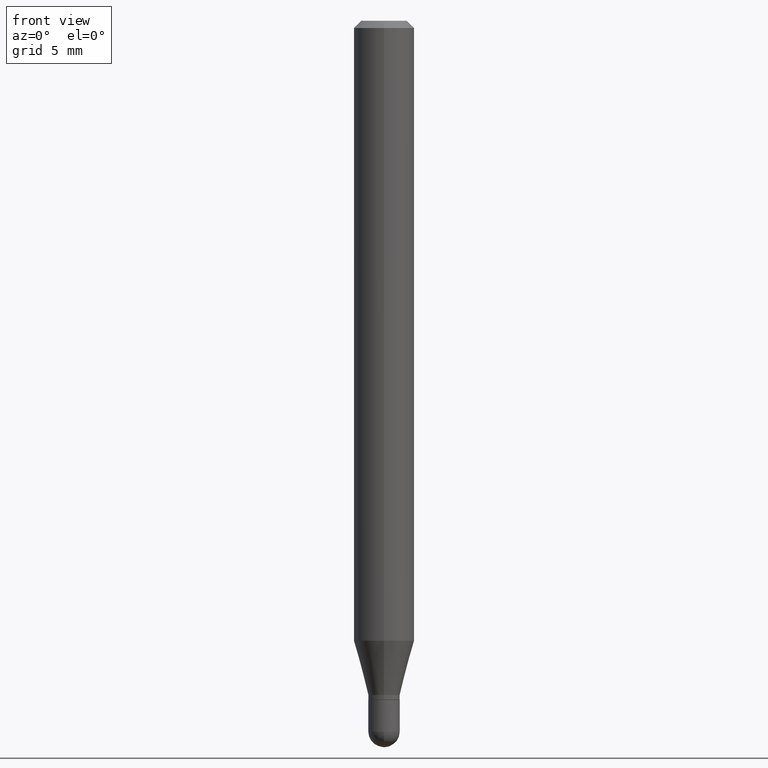
[diagram: clean part render]
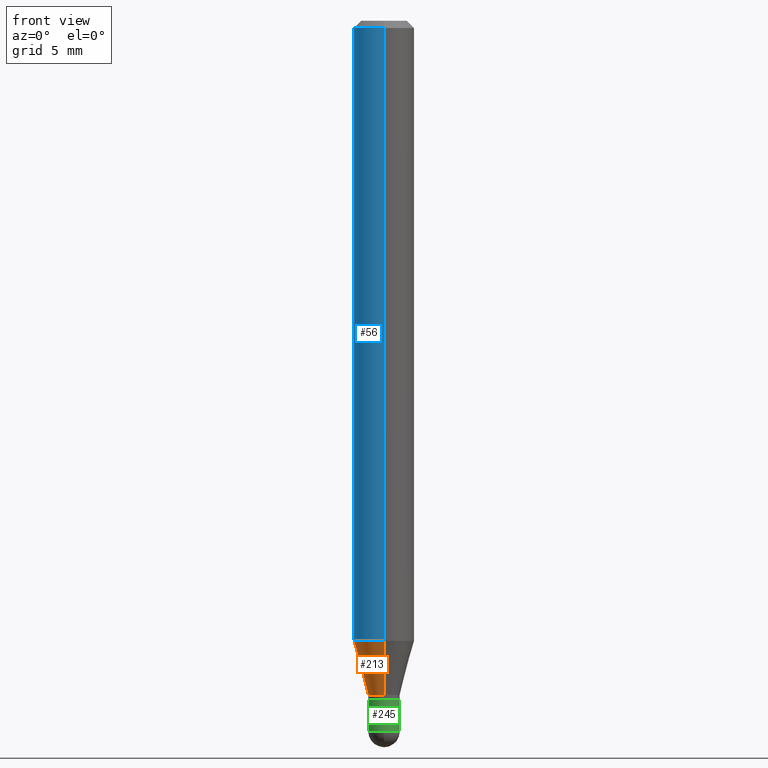
[diagram: same view with three faces highlighted in distinct colors, each labeled with its STEP entity id]
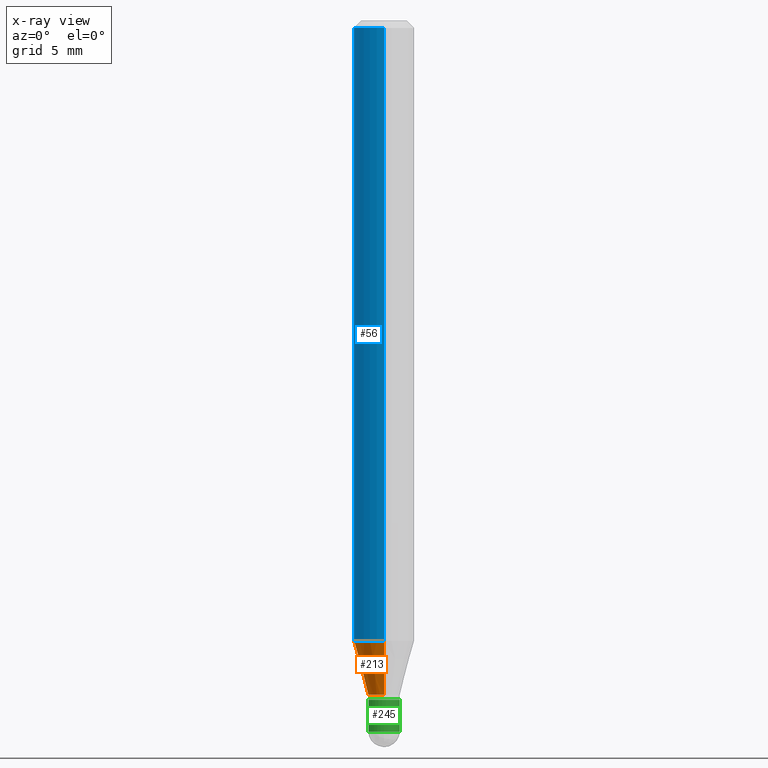
[diagram: x-ray of the same camera — body ghosted, the three highlighted faces saturated]
A machine part, front view with three faces highlighted in distinct colors.
The next image is the same camera in x-ray (body ghosted, the three faces saturated) — at least one of them is partly hidden behind the body in this view.
Their STEP definitions:

[orange] entity #213 — the highlighted conical surface has half-angle 15 deg.
#20 = EDGE_LOOP ( 'NONE', ( #484, #252, #335, #136 ) ) ;
#43 = AXIS2_PLACEMENT_3D ( 'NONE', #71, #234, #195 ) ;
#45 = VERTEX_POINT ( 'NONE', #146 ) ;
#71 = CARTESIAN_POINT ( 'NONE',  ( 3.404031189235755546E-29, -4.860229936174407704E-15, -1.392000000000000348 ) ) ;
#78 = EDGE_CURVE ( 'NONE', #140, #92, #470, .T. ) ;
#80 = DIRECTION ( 'NONE',  ( -6.982962677686265133E-15, -1.000000000000000000, 0.000000000000000000 ) ) ;
#82 = EDGE_CURVE ( 'NONE', #45, #140, #288, .T. ) ;
#92 = VERTEX_POINT ( 'NONE', #107 ) ;
#107 = CARTESIAN_POINT ( 'NONE',  ( -4.364351673553605094E-16, -0.06250000000000451028, -1.280038475772934836 ) ) ;
#124 = FACE_OUTER_BOUND ( 'NONE', #20, .T. ) ;
#125 = CARTESIAN_POINT ( 'NONE',  ( 4.440892098500935790E-16, 0.06249999999999548972, -1.280038475772935502 ) ) ;
#136 = ORIENTED_EDGE ( 'NONE', *, *, #388, .F. ) ;
#140 = VERTEX_POINT ( 'NONE', #324 ) ;
#146 = CARTESIAN_POINT ( 'NONE',  ( 3.375077994860809709E-16, 0.03249999999999533817, -1.392000000000000348 ) ) ;
#157 = EDGE_CURVE ( 'NONE', #45, #293, #443, .T. ) ;
#160 = DIRECTION ( 'NONE',  ( 1.839019923739600315E-15, 0.2588190451025249583, 0.9659258262890670910 ) ) ;
#178 = DIRECTION ( 'NONE',  ( -2.445424704910742757E-29, 3.491544494378166105E-15, 1.000000000000000000 ) ) ;
#195 = DIRECTION ( 'NONE',  ( -6.982962677686265133E-15, -1.000000000000000000, 0.000000000000000000 ) ) ;
#199 = CONICAL_SURFACE ( 'NONE', #266, 0.03250000000000020234, 0.2617993877991502960 ) ;
#213 = ADVANCED_FACE ( 'NONE', ( #124 ), #199, .T. ) ;
#234 = DIRECTION ( 'NONE',  ( -2.445424704910742757E-29, 3.491544494378166105E-15, 1.000000000000000000 ) ) ;
#252 = ORIENTED_EDGE ( 'NONE', *, *, #82, .T. ) ;
#266 = AXIS2_PLACEMENT_3D ( 'NONE', #326, #450, #80 ) ;
#273 = VECTOR ( 'NONE', #438, 39.37007874015748143 ) ;
#288 = CIRCLE ( 'NONE', #43, 0.03250000000000020234 ) ;
#293 = VERTEX_POINT ( 'NONE', #125 ) ;
#324 = CARTESIAN_POINT ( 'NONE',  ( -2.269462870247710093E-16, -0.03250000000000505956, -1.392000000000000348 ) ) ;
#326 = CARTESIAN_POINT ( 'NONE',  ( 3.404031189235755546E-29, -4.860229936174407704E-15, -1.392000000000000348 ) ) ;
#335 = ORIENTED_EDGE ( 'NONE', *, *, #78, .T. ) ;
#379 = DIRECTION ( 'NONE',  ( -6.982962677686265922E-15, -1.000000000000000000, 4.370956789862821150E-15 ) ) ;
#388 = EDGE_CURVE ( 'NONE', #293, #92, #439, .T. ) ;
#419 = CARTESIAN_POINT ( 'NONE',  ( 3.130237711891426451E-29, -4.469311292677210707E-15, -1.280038475772935058 ) ) ;
#438 = DIRECTION ( 'NONE',  ( -1.807323732225330139E-15, -0.2588190451025181860, 0.9659258262890689783 ) ) ;
#439 = CIRCLE ( 'NONE', #466, 0.06250000000000000000 ) ;
#443 = LINE ( 'NONE', #479, #445 ) ;
#445 = VECTOR ( 'NONE', #160, 39.37007874015748143 ) ;
#450 = DIRECTION ( 'NONE',  ( -2.445424704910742757E-29, 3.491544494378166105E-15, 1.000000000000000000 ) ) ;
#466 = AXIS2_PLACEMENT_3D ( 'NONE', #419, #178, #379 ) ;
#468 = CARTESIAN_POINT ( 'NONE',  ( -2.269462870247710093E-16, -0.03250000000000505956, -1.392000000000000348 ) ) ;
#470 = LINE ( 'NONE', #468, #273 ) ;
#479 = CARTESIAN_POINT ( 'NONE',  ( 2.309263891220679684E-16, 0.03249999999999533817, -1.392000000000000348 ) ) ;
#484 = ORIENTED_EDGE ( 'NONE', *, *, #157, .F. ) ;

[blue] entity #56 — the highlighted cylindrical surface (edge-blend (fillet) strip) has radius 1.5875 mm, axis along (-0, 0, 1).
#7 = VECTOR ( 'NONE', #508, 39.37007874015748143 ) ;
#10 = ORIENTED_EDGE ( 'NONE', *, *, #166, .F. ) ;
#17 = DIRECTION ( 'NONE',  ( -2.445424704910742757E-29, 3.491544494378166105E-15, 1.000000000000000000 ) ) ;
#18 = DIRECTION ( 'NONE',  ( -6.982962677686265922E-15, -1.000000000000000000, 3.483106191921935554E-15 ) ) ;
#56 = ADVANCED_FACE ( 'NONE', ( #501 ), #357, .T. ) ;
#79 = LINE ( 'NONE', #244, #375 ) ;
#83 = AXIS2_PLACEMENT_3D ( 'NONE', #315, #17, #108 ) ;
#90 = CARTESIAN_POINT ( 'NONE',  ( 3.668137057366194728E-31, -5.237316741567363887E-17, -0.01500000000000032904 ) ) ;
#92 = VERTEX_POINT ( 'NONE', #107 ) ;
#101 = EDGE_CURVE ( 'NONE', #92, #151, #193, .T. ) ;
#107 = CARTESIAN_POINT ( 'NONE',  ( -4.364351673553605094E-16, -0.06250000000000451028, -1.280038475772934836 ) ) ;
#108 = DIRECTION ( 'NONE',  ( -6.982962677686265922E-15, -1.000000000000000000, 3.491544494378165710E-15 ) ) ;
#125 = CARTESIAN_POINT ( 'NONE',  ( 4.440892098500935790E-16, 0.06249999999999548972, -1.280038475772935502 ) ) ;
#151 = VERTEX_POINT ( 'NONE', #283 ) ;
#166 = EDGE_CURVE ( 'NONE', #293, #331, #79, .T. ) ;
#177 = ORIENTED_EDGE ( 'NONE', *, *, #435, .F. ) ;
#178 = DIRECTION ( 'NONE',  ( -2.445424704910742757E-29, 3.491544494378166105E-15, 1.000000000000000000 ) ) ;
#184 = ORIENTED_EDGE ( 'NONE', *, *, #101, .T. ) ;
#193 = LINE ( 'NONE', #306, #7 ) ;
#220 = CARTESIAN_POINT ( 'NONE',  ( 4.440892098500940720E-16, 0.06249999999999993755, -0.01500000000000054588 ) ) ;
#244 = CARTESIAN_POINT ( 'NONE',  ( 4.440892098500625669E-16, 0.06250000000000000000, -2.182215308986353569E-16 ) ) ;
#281 = AXIS2_PLACEMENT_3D ( 'NONE', #90, #382, #18 ) ;
#283 = CARTESIAN_POINT ( 'NONE',  ( -4.364351673553912750E-16, -0.06250000000000005551, -0.01500000000000011047 ) ) ;
#286 = ORIENTED_EDGE ( 'NONE', *, *, #388, .T. ) ;
#289 = CIRCLE ( 'NONE', #281, 0.06250000000000000000 ) ;
#293 = VERTEX_POINT ( 'NONE', #125 ) ;
#306 = CARTESIAN_POINT ( 'NONE',  ( -4.364351673553916201E-16, -0.06250000000000000000, 2.182215308986353569E-16 ) ) ;
#315 = CARTESIAN_POINT ( 'NONE',  ( 0.000000000000000000, 0.000000000000000000, 0.000000000000000000 ) ) ;
#331 = VERTEX_POINT ( 'NONE', #220 ) ;
#357 = CYLINDRICAL_SURFACE ( 'NONE', #83, 0.06250000000000000000 ) ;
#375 = VECTOR ( 'NONE', #444, 39.37007874015748143 ) ;
#379 = DIRECTION ( 'NONE',  ( -6.982962677686265922E-15, -1.000000000000000000, 4.370956789862821150E-15 ) ) ;
#382 = DIRECTION ( 'NONE',  ( -2.445424704910742757E-29, 3.491544494378166105E-15, 1.000000000000000000 ) ) ;
#388 = EDGE_CURVE ( 'NONE', #293, #92, #439, .T. ) ;
#419 = CARTESIAN_POINT ( 'NONE',  ( 3.130237711891426451E-29, -4.469311292677210707E-15, -1.280038475772935058 ) ) ;
#423 = EDGE_LOOP ( 'NONE', ( #10, #286, #184, #177 ) ) ;
#435 = EDGE_CURVE ( 'NONE', #331, #151, #289, .T. ) ;
#439 = CIRCLE ( 'NONE', #466, 0.06250000000000000000 ) ;
#444 = DIRECTION ( 'NONE',  ( -2.445424704910742757E-29, 3.491544494378165710E-15, 1.000000000000000000 ) ) ;
#466 = AXIS2_PLACEMENT_3D ( 'NONE', #419, #178, #379 ) ;
#501 = FACE_OUTER_BOUND ( 'NONE', #423, .T. ) ;
#508 = DIRECTION ( 'NONE',  ( -2.445424704910742757E-29, 3.491544494378165710E-15, 1.000000000000000000 ) ) ;

[green] entity #245 — the highlighted cylindrical surface (edge-blend (fillet) strip) has radius 0.8255 mm, axis along (-0, 0, 1).
#13 = CARTESIAN_POINT ( 'NONE',  ( 0.03250000000000000111, -5.236349137930007031E-15, -1.467500000000000027 ) ) ;
#22 = VERTEX_POINT ( 'NONE', #434 ) ;
#27 = EDGE_CURVE ( 'NONE', #349, #451, #153, .T. ) ;
#44 = AXIS2_PLACEMENT_3D ( 'NONE', #77, #241, #412 ) ;
#46 = CARTESIAN_POINT ( 'NONE',  ( 0.03250000000000000111, -5.122003124082894208E-15, -1.402000000000000135 ) ) ;
#49 = CARTESIAN_POINT ( 'NONE',  ( 3.588725473076687933E-29, -5.123748864752316500E-15, -1.467500000000000027 ) ) ;
#61 = DIRECTION ( 'NONE',  ( 1.000000000000000000, -6.982962677686258033E-15, 0.000000000000000000 ) ) ;
#63 = DIRECTION ( 'NONE',  ( -2.445468806185136877E-29, 3.491481338843145188E-15, 1.000000000000000000 ) ) ;
#77 = CARTESIAN_POINT ( 'NONE',  ( 0.000000000000000000, 0.000000000000000000, 0.000000000000000000 ) ) ;
#98 = DIRECTION ( 'NONE',  ( -2.445468806185136597E-29, 3.491481338843145583E-15, 1.000000000000000000 ) ) ;
#132 = EDGE_CURVE ( 'NONE', #22, #336, #276, .T. ) ;
#133 = DIRECTION ( 'NONE',  ( -2.445468806185136597E-29, 3.491481338843145583E-15, 1.000000000000000000 ) ) ;
#144 = CARTESIAN_POINT ( 'NONE',  ( -0.03250000000000000111, 2.309263891220325683E-16, -1.598653904332844407E-30 ) ) ;
#152 = DIRECTION ( 'NONE',  ( 1.000000000000000000, -6.982962677686258033E-15, 0.000000000000000000 ) ) ;
#153 = LINE ( 'NONE', #265, #510 ) ;
#165 = CIRCLE ( 'NONE', #495, 0.03250000000000000111 ) ;
#171 = CARTESIAN_POINT ( 'NONE',  ( 3.588725473076687933E-29, -5.123748864752316500E-15, -1.467500000000000027 ) ) ;
#174 = ORIENTED_EDGE ( 'NONE', *, *, #348, .T. ) ;
#176 = CARTESIAN_POINT ( 'NONE',  ( -0.03250000000000000111, -4.778476461783171307E-15, -1.402000000000000135 ) ) ;
#208 = CARTESIAN_POINT ( 'NONE',  ( -2.269462870247682482E-16, -0.03250000000000519140, -1.467500000000000027 ) ) ;
#241 = DIRECTION ( 'NONE',  ( -2.445468806185136597E-29, 3.491481338843145583E-15, 1.000000000000000000 ) ) ;
#245 = ADVANCED_FACE ( 'NONE', ( #332 ), #367, .T. ) ;
#261 = ORIENTED_EDGE ( 'NONE', *, *, #509, .F. ) ;
#265 = CARTESIAN_POINT ( 'NONE',  ( 0.03250000000000000111, -2.269462870248036977E-16, 1.584757452133679343E-30 ) ) ;
#276 = LINE ( 'NONE', #144, #298 ) ;
#295 = ORIENTED_EDGE ( 'NONE', *, *, #488, .T. ) ;
#298 = VECTOR ( 'NONE', #63, 39.37007874015748143 ) ;
#310 = ORIENTED_EDGE ( 'NONE', *, *, #132, .F. ) ;
#318 = DIRECTION ( 'NONE',  ( -2.445468806185136877E-29, 3.491481338843145188E-15, 1.000000000000000000 ) ) ;
#332 = FACE_OUTER_BOUND ( 'NONE', #392, .T. ) ;
#336 = VERTEX_POINT ( 'NONE', #176 ) ;
#348 = EDGE_CURVE ( 'NONE', #22, #464, #165, .T. ) ;
#349 = VERTEX_POINT ( 'NONE', #13 ) ;
#367 = CYLINDRICAL_SURFACE ( 'NONE', #44, 0.03250000000000000111 ) ;
#370 = CIRCLE ( 'NONE', #458, 0.03250000000000000111 ) ;
#373 = DIRECTION ( 'NONE',  ( 1.000000000000000000, -6.982962677686258033E-15, 0.000000000000000000 ) ) ;
#377 = AXIS2_PLACEMENT_3D ( 'NONE', #49, #498, #61 ) ;
#392 = EDGE_LOOP ( 'NONE', ( #310, #174, #295, #492, #261 ) ) ;
#393 = CARTESIAN_POINT ( 'NONE',  ( 3.428547266271562329E-29, -4.895056837058090855E-15, -1.402000000000000135 ) ) ;
#412 = DIRECTION ( 'NONE',  ( 1.000000000000000000, -6.982962677686267499E-15, 4.876176775795936353E-29 ) ) ;
#434 = CARTESIAN_POINT ( 'NONE',  ( -0.03250000000000000111, -4.778476461783171307E-15, -1.467500000000000027 ) ) ;
#451 = VERTEX_POINT ( 'NONE', #46 ) ;
#458 = AXIS2_PLACEMENT_3D ( 'NONE', #393, #98, #152 ) ;
#464 = VERTEX_POINT ( 'NONE', #208 ) ;
#488 = EDGE_CURVE ( 'NONE', #464, #349, #511, .T. ) ;
#492 = ORIENTED_EDGE ( 'NONE', *, *, #27, .T. ) ;
#495 = AXIS2_PLACEMENT_3D ( 'NONE', #171, #133, #373 ) ;
#498 = DIRECTION ( 'NONE',  ( -2.445468806185136597E-29, 3.491481338843145583E-15, 1.000000000000000000 ) ) ;
#509 = EDGE_CURVE ( 'NONE', #336, #451, #370, .T. ) ;
#510 = VECTOR ( 'NONE', #318, 39.37007874015748143 ) ;
#511 = CIRCLE ( 'NONE', #377, 0.03250000000000000111 ) ;